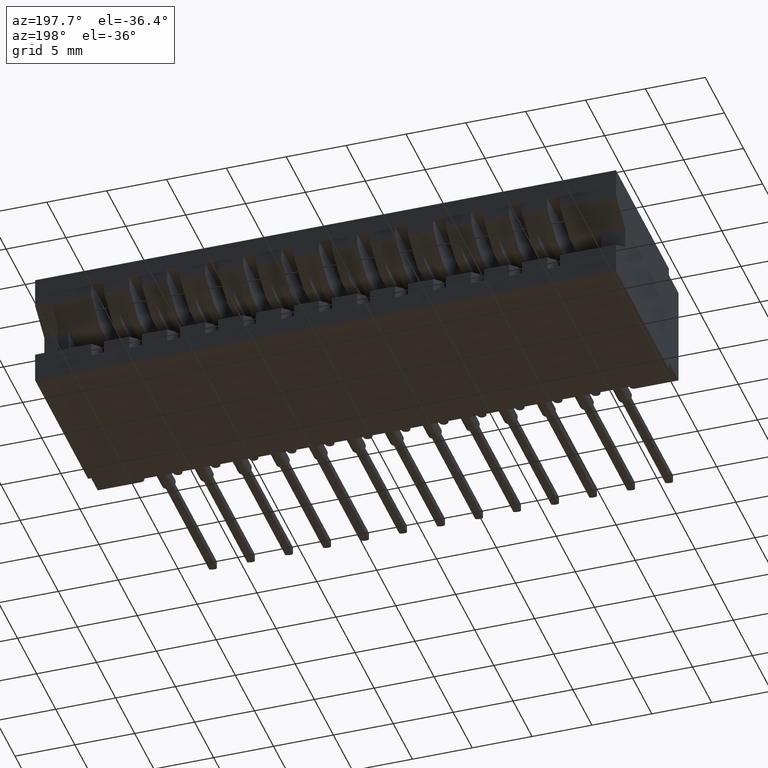
[diagram: clean part render]
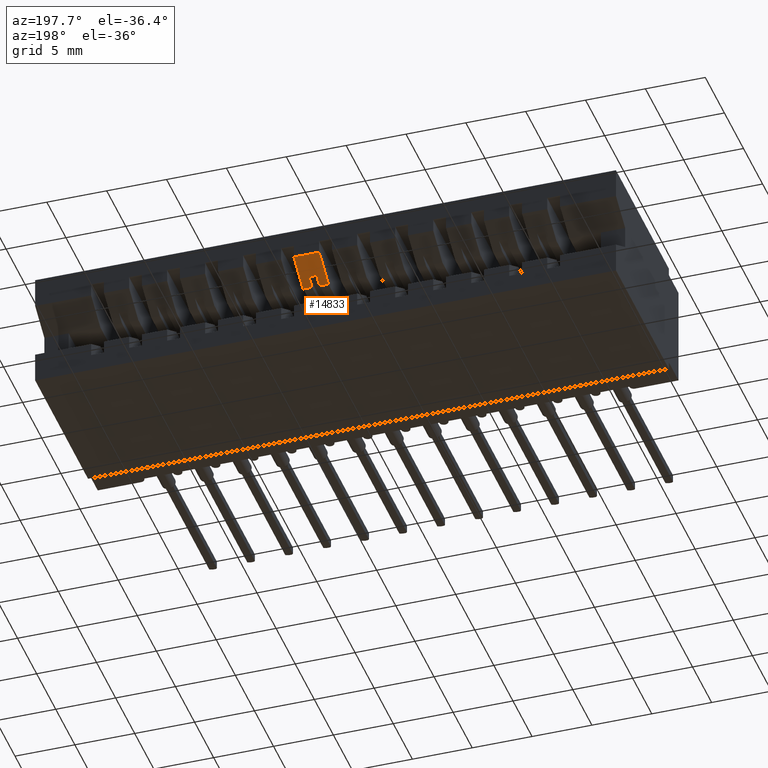
[diagram: same view with one face highlighted and labeled with its STEP entity id]
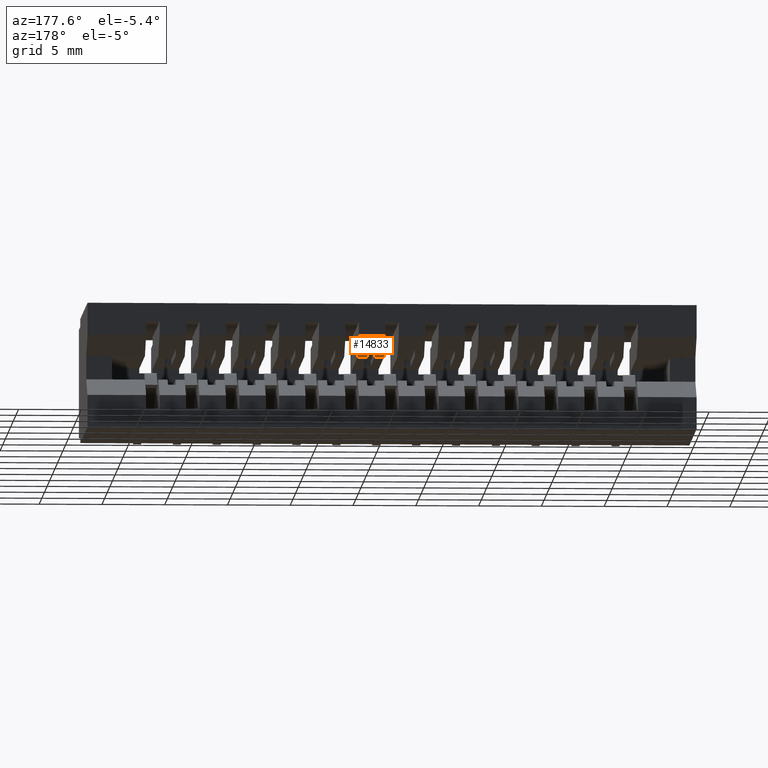
[diagram: same view with one face highlighted and labeled with its STEP entity id]
A machine part, auxiliary view. The second image highlights one B-rep face of the part: STEP entity #14833.
A second angle (auxiliary view) of the same face is appended — the face is thin or edge-on in the first view.
In plain terms, the highlighted planar face has unit normal (0, 0.5194, -0.8545).
Its self-contained STEP definition (entity closure, byte-faithful):
#395 = CARTESIAN_POINT ( 'NONE',  ( 1.029999999999999583, 0.5812554112554111363, -0.1389999999999999292 ) ) ;
#476 = CARTESIAN_POINT ( 'NONE',  ( 1.909999999999999920, 0.6449999999999999067, -0.1002500000000000058 ) ) ;
#496 = EDGE_CURVE ( 'NONE', #5141, #15328, #16264, .T. ) ;
#716 = ORIENTED_EDGE ( 'NONE', *, *, #15953, .F. ) ;
#852 = CARTESIAN_POINT ( 'NONE',  ( 1.029999999999999583, 0.5499999999999998224, -0.1579999999999999738 ) ) ;
#1487 = AXIS2_PLACEMENT_3D ( 'NONE', #23477, #18294, #23350 ) ;
#1551 = VERTEX_POINT ( 'NONE', #13871 ) ;
#1638 = LINE ( 'NONE', #14514, #6162 ) ;
#1920 = EDGE_LOOP ( 'NONE', ( #716, #11167, #23730, #22370, #7287, #9696, #10893, #4906 ) ) ;
#2283 = DIRECTION ( 'NONE',  ( -1.000000000000000000, 0.0000000000000000000, 0.0000000000000000000 ) ) ;
#2386 = DIRECTION ( 'NONE',  ( -1.000000000000000000, 0.0000000000000000000, 0.0000000000000000000 ) ) ;
#2770 = VECTOR ( 'NONE', #2283, 39.37007874015748143 ) ;
#2868 = VECTOR ( 'NONE', #8518, 39.37007874015748854 ) ;
#3500 = VERTEX_POINT ( 'NONE', #7666 ) ;
#4262 = VECTOR ( 'NONE', #12238, 39.37007874015748854 ) ;
#4861 = LINE ( 'NONE', #17882, #4262 ) ;
#4906 = ORIENTED_EDGE ( 'NONE', *, *, #5363, .T. ) ;
#5098 = EDGE_CURVE ( 'NONE', #15328, #16663, #17176, .T. ) ;
#5141 = VERTEX_POINT ( 'NONE', #15840 ) ;
#5363 = EDGE_CURVE ( 'NONE', #3500, #17131, #1638, .T. ) ;
#6162 = VECTOR ( 'NONE', #21976, 39.37007874015748143 ) ;
#6666 = CARTESIAN_POINT ( 'NONE',  ( 1.058999999999999719, 0.6449999999999999067, -0.1002500000000000474 ) ) ;
#6712 = VERTEX_POINT ( 'NONE', #6666 ) ;
#7287 = ORIENTED_EDGE ( 'NONE', *, *, #15408, .F. ) ;
#7666 = CARTESIAN_POINT ( 'NONE',  ( 1.058999999999999719, 0.5499999999999999334, -0.1580000000000000016 ) ) ;
#8150 = VERTEX_POINT ( 'NONE', #14618 ) ;
#8518 = DIRECTION ( 'NONE',  ( -1.238924702507071956E-16, -0.8545023705661021207, -0.5194474936862354397 ) ) ;
#9237 = CARTESIAN_POINT ( 'NONE',  ( 0.9759999999999996456, 0.6450000000000001288, -0.1002499999999999364 ) ) ;
#9696 = ORIENTED_EDGE ( 'NONE', *, *, #22530, .F. ) ;
#10455 = EDGE_CURVE ( 'NONE', #6712, #3500, #17779, .T. ) ;
#10893 = ORIENTED_EDGE ( 'NONE', *, *, #10455, .T. ) ;
#11167 = ORIENTED_EDGE ( 'NONE', *, *, #5098, .F. ) ;
#12015 = CARTESIAN_POINT ( 'NONE',  ( 1.909999999999999920, 0.5812554112554112473, -0.1389999999999999292 ) ) ;
#12238 = DIRECTION ( 'NONE',  ( 0.0000000000000000000, -0.8545023705661021207, -0.5194474936862354397 ) ) ;
#12979 = DIRECTION ( 'NONE',  ( -1.238924702507071956E-16, -0.8545023705661021207, -0.5194474936862354397 ) ) ;
#13491 = VECTOR ( 'NONE', #2386, 39.37007874015748143 ) ;
#13871 = CARTESIAN_POINT ( 'NONE',  ( 0.9759999999999996456, 0.5499999999999999334, -0.1580000000000000016 ) ) ;
#14514 = CARTESIAN_POINT ( 'NONE',  ( 1.909999999999999920, 0.5499999999999999334, -0.1580000000000000016 ) ) ;
#14572 = CARTESIAN_POINT ( 'NONE',  ( 1.004999999999999449, 0.6449999999999999067, -0.1002500000000000058 ) ) ;
#14618 = CARTESIAN_POINT ( 'NONE',  ( 0.9759999999999996456, 0.6449999999999999067, -0.1002500000000000335 ) ) ;
#14833 = ADVANCED_FACE ( 'NONE', ( #21786 ), #19990, .T. ) ;
#15328 = VERTEX_POINT ( 'NONE', #22227 ) ;
#15408 = EDGE_CURVE ( 'NONE', #8150, #1551, #18626, .T. ) ;
#15840 = CARTESIAN_POINT ( 'NONE',  ( 1.004999999999999449, 0.5499999999999998224, -0.1579999999999999738 ) ) ;
#15953 = EDGE_CURVE ( 'NONE', #16663, #17131, #4861, .T. ) ;
#16095 = CARTESIAN_POINT ( 'NONE',  ( 1.058999999999999719, 0.6450000000000001288, -0.1002499999999999641 ) ) ;
#16264 = LINE ( 'NONE', #14572, #20210 ) ;
#16663 = VERTEX_POINT ( 'NONE', #395 ) ;
#17073 = EDGE_CURVE ( 'NONE', #5141, #1551, #20591, .T. ) ;
#17096 = CARTESIAN_POINT ( 'NONE',  ( 1.909999999999999920, 0.5499999999999999334, -0.1580000000000000016 ) ) ;
#17131 = VERTEX_POINT ( 'NONE', #852 ) ;
#17176 = LINE ( 'NONE', #12015, #22175 ) ;
#17308 = LINE ( 'NONE', #476, #13491 ) ;
#17779 = LINE ( 'NONE', #16095, #2868 ) ;
#17882 = CARTESIAN_POINT ( 'NONE',  ( 1.029999999999999583, 0.6449999999999999067, -0.1002500000000000058 ) ) ;
#18294 = DIRECTION ( 'NONE',  ( 0.0000000000000000000, 0.5194474936862355507, -0.8545023705661022317 ) ) ;
#18626 = LINE ( 'NONE', #9237, #22250 ) ;
#19990 = PLANE ( 'NONE',  #1487 ) ;
#20210 = VECTOR ( 'NONE', #23348, 39.37007874015748854 ) ;
#20591 = LINE ( 'NONE', #17096, #2770 ) ;
#21786 = FACE_OUTER_BOUND ( 'NONE', #1920, .T. ) ;
#21976 = DIRECTION ( 'NONE',  ( -1.000000000000000000, 0.0000000000000000000, 0.0000000000000000000 ) ) ;
#22175 = VECTOR ( 'NONE', #22934, 39.37007874015748143 ) ;
#22227 = CARTESIAN_POINT ( 'NONE',  ( 1.004999999999999449, 0.5812554112554111363, -0.1389999999999999292 ) ) ;
#22250 = VECTOR ( 'NONE', #12979, 39.37007874015748854 ) ;
#22370 = ORIENTED_EDGE ( 'NONE', *, *, #17073, .T. ) ;
#22530 = EDGE_CURVE ( 'NONE', #6712, #8150, #17308, .T. ) ;
#22934 = DIRECTION ( 'NONE',  ( 1.000000000000000000, 0.0000000000000000000, 0.0000000000000000000 ) ) ;
#23348 = DIRECTION ( 'NONE',  ( 0.0000000000000000000, 0.8545023705661021207, 0.5194474936862354397 ) ) ;
#23350 = DIRECTION ( 'NONE',  ( 0.0000000000000000000, 0.8545023705661021207, 0.5194474936862354397 ) ) ;
#23477 = CARTESIAN_POINT ( 'NONE',  ( 1.909999999999999920, 0.6449999999999999067, -0.1002500000000000058 ) ) ;
#23730 = ORIENTED_EDGE ( 'NONE', *, *, #496, .F. ) ;